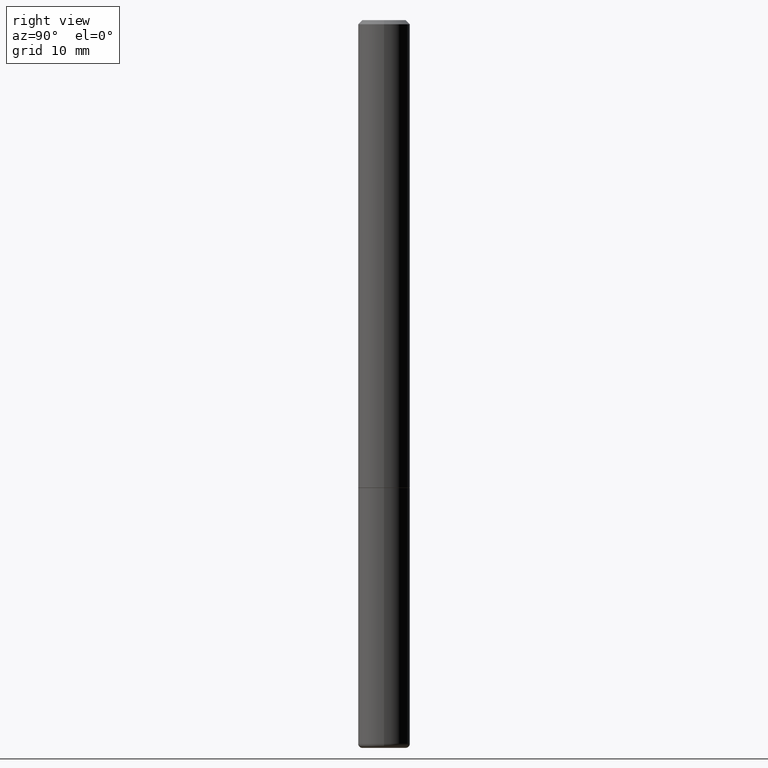
[diagram: clean part render]
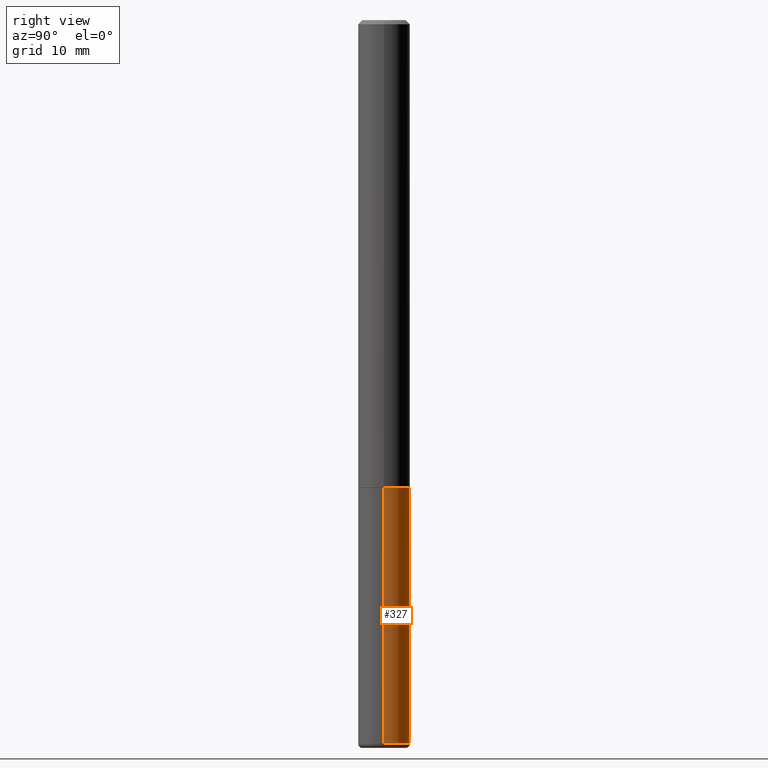
[diagram: same view with one face highlighted and labeled with its STEP entity id]
A machine part, right view. The second image highlights one B-rep face of the part: STEP entity #327.
In plain terms, the highlighted cylindrical surface (edge-blend (fillet) strip) has radius 3.175 mm, axis along (-0, 0, 1).
Its self-contained STEP definition (entity closure, byte-faithful):
#17 = CARTESIAN_POINT ( 'NONE',  ( -0.1250000000000000000, 8.881784197001252323E-16, -6.148668862818632227E-30 ) ) ;
#40 = CIRCLE ( 'NONE', #225, 0.1250000000000000000 ) ;
#46 = VERTEX_POINT ( 'NONE', #182 ) ;
#53 = EDGE_LOOP ( 'NONE', ( #441, #55, #200, #481 ) ) ;
#55 = ORIENTED_EDGE ( 'NONE', *, *, #281, .T. ) ;
#63 = DIRECTION ( 'NONE',  ( -2.445468806185136597E-29, 3.491481338843145583E-15, 1.000000000000000000 ) ) ;
#64 = VERTEX_POINT ( 'NONE', #417 ) ;
#67 = LINE ( 'NONE', #413, #204 ) ;
#70 = AXIS2_PLACEMENT_3D ( 'NONE', #213, #63, #322 ) ;
#95 = DIRECTION ( 'NONE',  ( -2.445468806185136877E-29, 3.491481338843145188E-15, 1.000000000000000000 ) ) ;
#101 = DIRECTION ( 'NONE',  ( -2.445468806185136597E-29, 3.491481338843145583E-15, 1.000000000000000000 ) ) ;
#146 = CARTESIAN_POINT ( 'NONE',  ( -0.1250000000000000000, -9.114916945534594439E-15, -2.249999999999999556 ) ) ;
#161 = VERTEX_POINT ( 'NONE', #146 ) ;
#166 = CARTESIAN_POINT ( 'NONE',  ( 0.000000000000000000, 0.000000000000000000, 0.000000000000000000 ) ) ;
#182 = CARTESIAN_POINT ( 'NONE',  ( -0.1250000000000000000, -9.114916945534594439E-15, -3.480000761538716514 ) ) ;
#200 = ORIENTED_EDGE ( 'NONE', *, *, #430, .F. ) ;
#201 = FACE_OUTER_BOUND ( 'NONE', #53, .T. ) ;
#204 = VECTOR ( 'NONE', #95, 39.37007874015748143 ) ;
#209 = DIRECTION ( 'NONE',  ( 1.000000000000000000, -6.982962677686266711E-15, 4.876176775795935793E-29 ) ) ;
#213 = CARTESIAN_POINT ( 'NONE',  ( 5.502304813916556222E-29, -7.855833012397075293E-15, -2.249999999999999556 ) ) ;
#222 = DIRECTION ( 'NONE',  ( 1.000000000000000000, -6.982962677686262766E-15, 0.000000000000000000 ) ) ;
#225 = AXIS2_PLACEMENT_3D ( 'NONE', #475, #101, #222 ) ;
#245 = AXIS2_PLACEMENT_3D ( 'NONE', #166, #399, #209 ) ;
#246 = CYLINDRICAL_SURFACE ( 'NONE', #245, 0.1250000000000000000 ) ;
#255 = CIRCLE ( 'NONE', #70, 0.1250000000000000000 ) ;
#281 = EDGE_CURVE ( 'NONE', #46, #161, #462, .T. ) ;
#293 = VECTOR ( 'NONE', #316, 39.37007874015748143 ) ;
#316 = DIRECTION ( 'NONE',  ( -2.445468806185136877E-29, 3.491481338843145188E-15, 1.000000000000000000 ) ) ;
#322 = DIRECTION ( 'NONE',  ( 1.000000000000000000, -6.982962677686270655E-15, 0.000000000000000000 ) ) ;
#327 = ADVANCED_FACE ( 'NONE', ( #201 ), #246, .T. ) ;
#354 = EDGE_CURVE ( 'NONE', #432, #64, #67, .T. ) ;
#399 = DIRECTION ( 'NONE',  ( -2.445468806185136597E-29, 3.491481338843145583E-15, 1.000000000000000000 ) ) ;
#412 = CARTESIAN_POINT ( 'NONE',  ( 0.1250000000000000000, -1.302322805278314581E-14, -3.480000761538716514 ) ) ;
#413 = CARTESIAN_POINT ( 'NONE',  ( 0.1250000000000000000, -8.728703347107833388E-16, 6.095220969744919741E-30 ) ) ;
#417 = CARTESIAN_POINT ( 'NONE',  ( 0.1250000000000000000, -8.728703347107860209E-15, -2.249999999999999556 ) ) ;
#430 = EDGE_CURVE ( 'NONE', #64, #161, #255, .T. ) ;
#432 = VERTEX_POINT ( 'NONE', #412 ) ;
#440 = EDGE_CURVE ( 'NONE', #432, #46, #40, .T. ) ;
#441 = ORIENTED_EDGE ( 'NONE', *, *, #440, .T. ) ;
#462 = LINE ( 'NONE', #17, #293 ) ;
#475 = CARTESIAN_POINT ( 'NONE',  ( 8.510233307843451119E-29, -1.215035771807236405E-14, -3.480000761538716514 ) ) ;
#481 = ORIENTED_EDGE ( 'NONE', *, *, #354, .F. ) ;